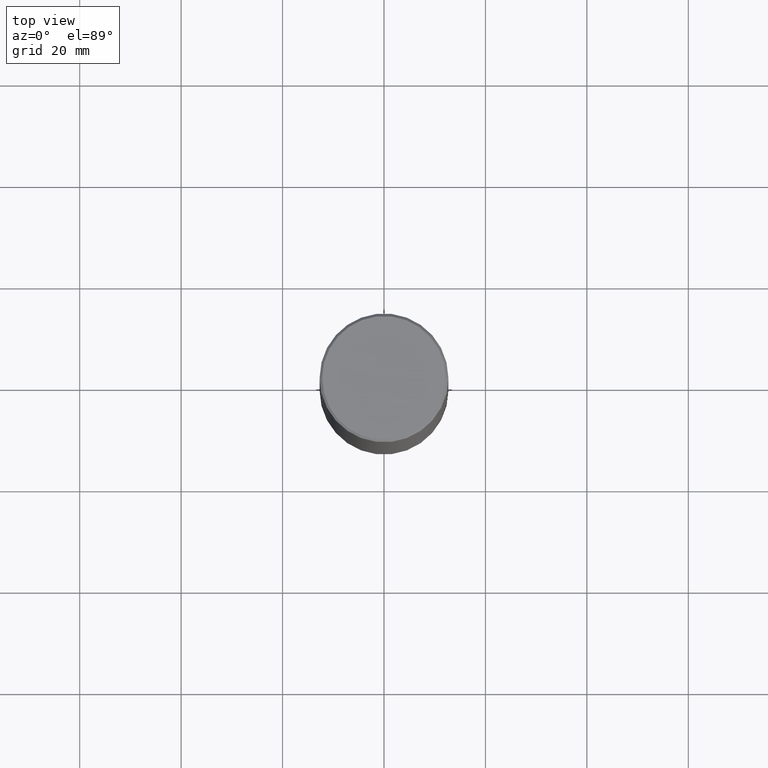
[diagram: clean part render]
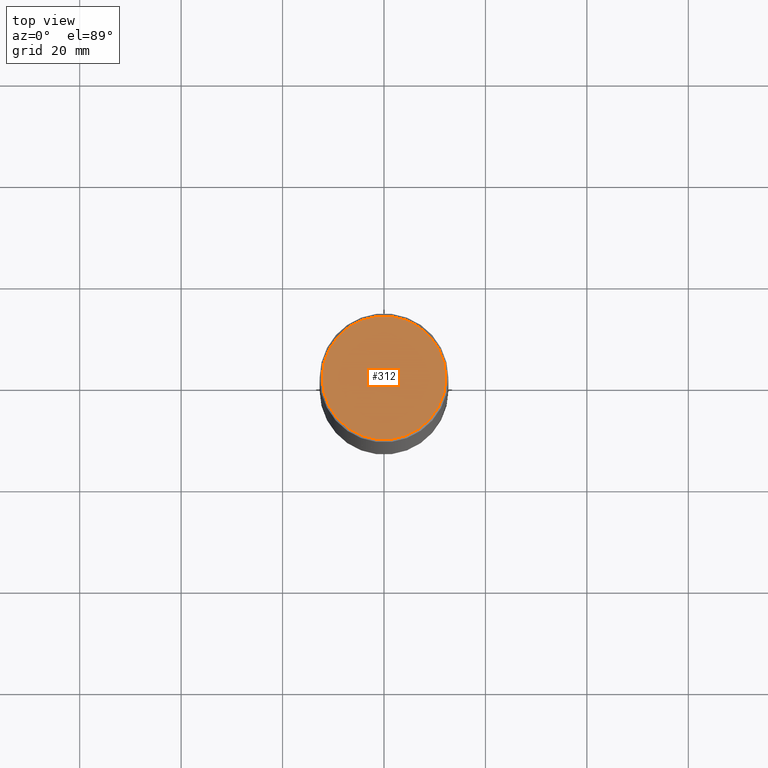
[diagram: same view with one face highlighted and labeled with its STEP entity id]
A machine part, top view. The second image highlights one B-rep face of the part: STEP entity #312.
In plain terms, the highlighted planar face has unit normal (0, -0, -1).
Its self-contained STEP definition (entity closure, byte-faithful):
#8 = DIRECTION ( 'NONE',  ( 2.438088387897960049E-29, -3.491481338843145188E-15, -1.000000000000000000 ) ) ;
#90 = DIRECTION ( 'NONE',  ( -2.445468806185136597E-29, 3.491481338843145583E-15, 1.000000000000000000 ) ) ;
#103 = CIRCLE ( 'NONE', #262, 0.4799999999999995937 ) ;
#109 = VERTEX_POINT ( 'NONE', #255 ) ;
#115 = CARTESIAN_POINT ( 'NONE',  ( -3.131554243005659264E-46, 4.471029511141341874E-32, 1.280553747030123384E-17 ) ) ;
#116 = VERTEX_POINT ( 'NONE', #120 ) ;
#120 = CARTESIAN_POINT ( 'NONE',  ( -0.4799999999999995937, 3.386736898677836436E-15, 1.280553747027767124E-17 ) ) ;
#122 = EDGE_CURVE ( 'NONE', #109, #116, #103, .T. ) ;
#131 = CARTESIAN_POINT ( 'NONE',  ( -3.131554243005659264E-46, 4.471029511141341874E-32, 1.280553747030123384E-17 ) ) ;
#148 = CARTESIAN_POINT ( 'NONE',  ( 3.351822085289404787E-15, 0.4799999999999995937, -1.669508273909557867E-15 ) ) ;
#149 = AXIS2_PLACEMENT_3D ( 'NONE', #148, #8, #337 ) ;
#173 = FACE_OUTER_BOUND ( 'NONE', #335, .T. ) ;
#188 = ORIENTED_EDGE ( 'NONE', *, *, #338, .T. ) ;
#217 = ORIENTED_EDGE ( 'NONE', *, *, #122, .T. ) ;
#223 = DIRECTION ( 'NONE',  ( -2.445468806185136597E-29, 3.491481338843145583E-15, 1.000000000000000000 ) ) ;
#255 = CARTESIAN_POINT ( 'NONE',  ( 0.4799999999999995937, -3.396558832296480127E-15, 1.280553747032483033E-17 ) ) ;
#262 = AXIS2_PLACEMENT_3D ( 'NONE', #115, #90, #314 ) ;
#300 = PLANE ( 'NONE',  #149 ) ;
#310 = DIRECTION ( 'NONE',  ( 1.000000000000000000, -6.982962677686266711E-15, 4.876036955247133327E-29 ) ) ;
#312 = ADVANCED_FACE ( 'NONE', ( #173 ), #300, .F. ) ;
#314 = DIRECTION ( 'NONE',  ( 1.000000000000000000, -6.982962677686266711E-15, 4.876036955247133327E-29 ) ) ;
#328 = CIRCLE ( 'NONE', #349, 0.4799999999999995937 ) ;
#335 = EDGE_LOOP ( 'NONE', ( #188, #217 ) ) ;
#337 = DIRECTION ( 'NONE',  ( -1.000000000000000000, 6.982962677686265922E-15, -4.876176775795935793E-29 ) ) ;
#338 = EDGE_CURVE ( 'NONE', #116, #109, #328, .T. ) ;
#349 = AXIS2_PLACEMENT_3D ( 'NONE', #131, #223, #310 ) ;